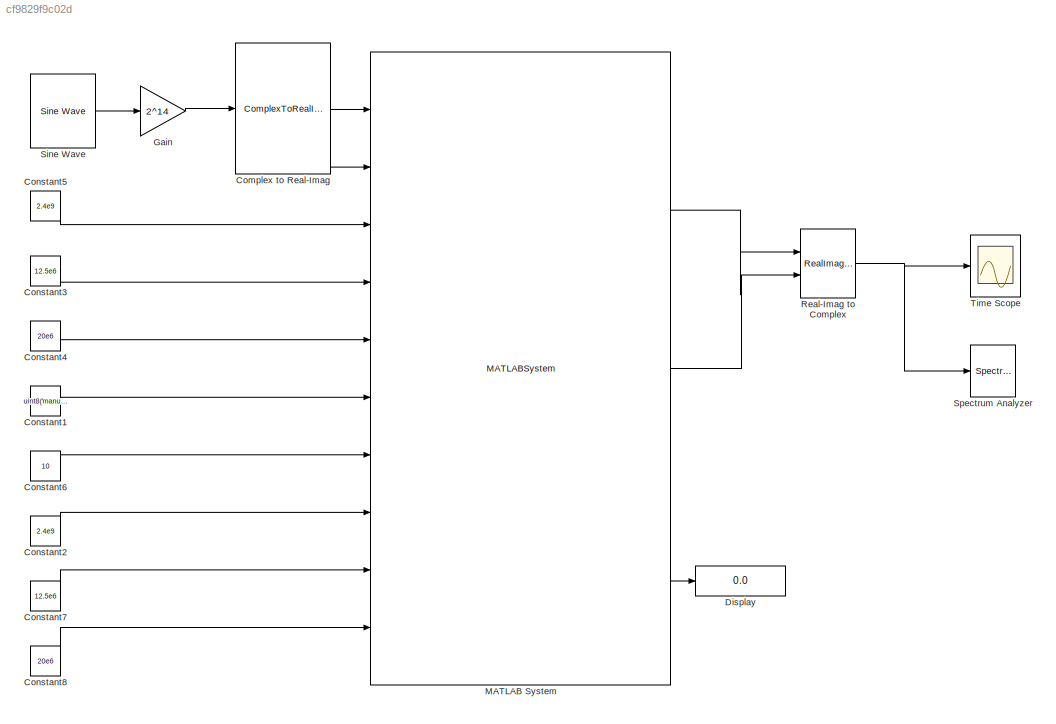
MODEL slx_cf9829f9c02d
KIND model
CONFIG AbsTol = auto
CONFIG FixedStep = auto
CONFIG MaxStep = auto
CONFIG MinStep = auto
CONFIG RelTol = 1e-3
CONFIG SampleTimeConstraint = Unconstrained
CONFIG Solver = VariableStepAuto
CONFIG SolverMode = Auto
CONFIG SolverName = VariableStepAuto
CONFIG StartTime = 0.0
CONFIG StopTime = inf
BLOCK [ComplexToRealImag] Complex to Real-Imag
  Ports = [1, 2]
BLOCK [Constant] Constant1
  SampleTime = -1
  Value = uint8('manual')
BLOCK [Constant] Constant2
  SampleTime = -1
  Value = 2.4e9
BLOCK [Constant] Constant3
  SampleTime = -1
  Value = 12.5e6
BLOCK [Constant] Constant4
  SampleTime = -1
  Value = 20e6
BLOCK [Constant] Constant5
  SampleTime = -1
  Value = 2.4e9
BLOCK [Constant] Constant6
  SampleTime = -1
  Value = 10
BLOCK [Constant] Constant7
  SampleTime = -1
  Value = 12.5e6
BLOCK [Constant] Constant8
  SampleTime = -1
  Value = 20e6
BLOCK [Display] Display
  Decimation = 1
  Ports = [1]
BLOCK [Gain] Gain
  Gain = 2^14
  OutDataTypeStr = Inherit: Inherit via internal rule
  ParamDataTypeStr = Inherit: Inherit via internal rule
  SaturateOnIntegerOverflow = off
BLOCK [MATLABSystem] MATLAB System
  DialogController = sysobjdialog.BlockDynDialog
  MaskDisplay = disp('ad9361');\nport_label('input',1,'DATA_IN1');\nport_label('input',2,'DATA_IN2');\nport_label('input',3,'RX_LO_FREQ');\nport_label('input',4,'RX_SAMPLING_FREQ');\nport_label('input',5,'RX_RF_BANDWIDTH');\nport_label('input',6,'RX1_GAIN_MODE');\nport_label('input',7,'RX1_GAIN');\nport_label('input',8,'TX_LO_FREQ');\nport_label('input',9,'TX_SAMPLING_FREQ');\nport_label('input',10,'TX_RF_BANDWIDTH');\nport...<+102ch>
  MaskType = iio_sys_obj
  Ports = [10, 3]
  SimulateUsing = Interpreted execution
  System = iio_sys_obj
  dev_name = ad9361
  in_ch_no = 2
  in_ch_size = 1e6
  ip_address = 192.168.2.1
  out_ch_no = 2
  out_ch_size = 1e6
BLOCK [RealImagToComplex] Real-Imag to Complex
  Ports = [2, 1]
BLOCK [Reference] Sine Wave  REF=dspsrcs4/Sine Wave
  Ports = [0, 1]
  SourceBlock = dspsrcs4/Sine Wave
  SourceType = Sine Wave
BLOCK [SpectrumAnalyzer] Spectrum Analyzer
  NumInputPorts = 1
  Ports = [1]
  ScopeSpecificationString = spbscopes.SpectrumAnalyzerBlockCfg('CurrentConfiguration', extmgr.ConfigurationSet(extmgr.Configuration('Core','General UI',true),extmgr.Configuration('Core','Source UI',true),extmgr.Configuration('Sources','WiredSimulink',true),extmgr.Configuration('Visuals','Spectrum',true,'AxesProperties',struct('Color',[0 0 0],'XColor',[0.686274509803922 0.686274509803922 0.686274509803922],'YColor',[0.6862745...<+1206ch>
BLOCK [Scope] Time Scope
  DefaultConfigurationName = spbscopes.TimeScopeBlockCfg
  Ports = [1]
  ScopeSpecificationString = spbscopes.TimeScopeBlockCfg('CurrentConfiguration', extmgr.ConfigurationSet(extmgr.Configuration('Core','General UI',true),extmgr.Configuration('Core','Source UI',true),extmgr.Configuration('Sources','WiredSimulink',true),extmgr.Configuration('Visuals','Time Domain',true,'DisplayPropertyDefaults',struct('MinYLimReal','-1271.33631','MaxYLimReal','1022.44331','YLabelReal','Amplitude','MinYLimMag',' ...<+1469ch>
  UserDataPersistent = on
LINE Complex to Real-Imag:1 -> MATLAB System:1
LINE Complex to Real-Imag:2 -> MATLAB System:2
LINE Constant1:1 -> MATLAB System:6
LINE Constant2:1 -> MATLAB System:8
LINE Constant3:1 -> MATLAB System:4
LINE Constant4:1 -> MATLAB System:5
LINE Constant5:1 -> MATLAB System:3
LINE Constant6:1 -> MATLAB System:7
LINE Constant7:1 -> MATLAB System:9
LINE Constant8:1 -> MATLAB System:10
LINE Gain:1 -> Complex to Real-Imag:1
LINE MATLAB System:1 -> Real-Imag to Complex:1
LINE MATLAB System:2 -> Real-Imag to Complex:2
LINE MATLAB System:3 -> Display:1
NET Real-Imag to Complex:1 -> Spectrum Analyzer:1, Time Scope:1
LINE Sine Wave:1 -> Gain:1
note: NET lines group one-source signal fan-out (src -> all destinations, sorted); 1:1 wires keep LINE
